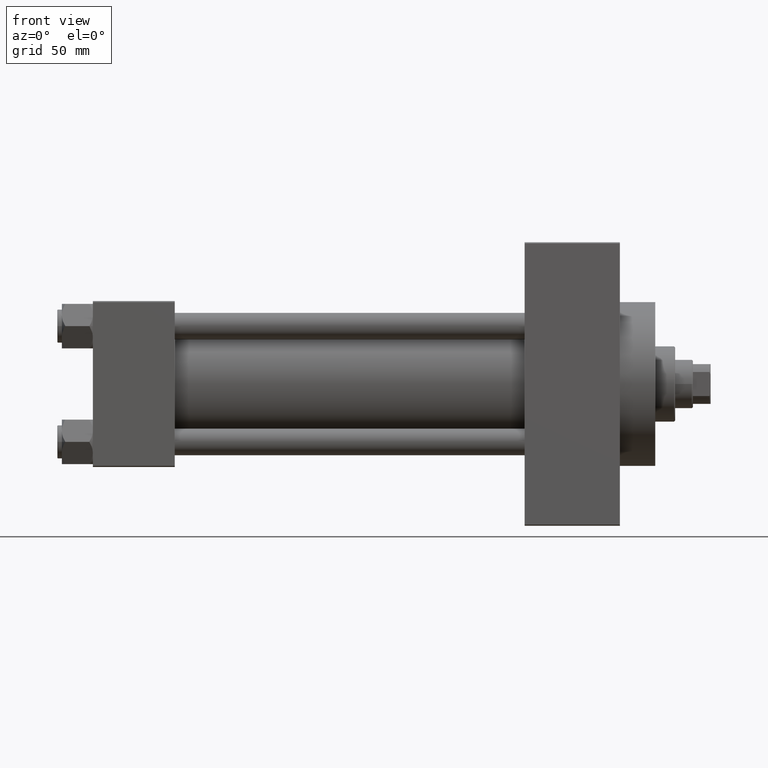
[diagram: clean part render]
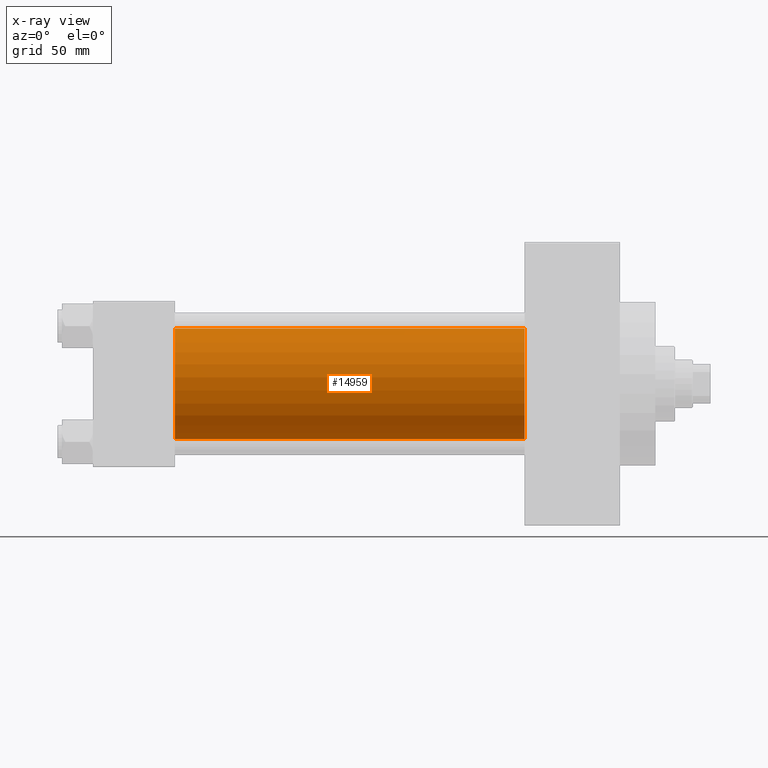
[diagram: x-ray — body ghosted, one internal face saturated and labeled with its STEP entity id]
A machine part, front view, then the same camera in x-ray: the body is ghosted and one INTERNAL B-rep face — a face not visible from any outside direction — is saturated and labeled: STEP entity #14959.
In plain terms, the highlighted cylindrical surface (partial cylindrical patch) has radius 25 mm, axis along (-1, -0, -0).
Its self-contained STEP definition (entity closure, byte-faithful):
#191 = DIRECTION ( 'NONE',  ( 1.000000000000000000, 0.000000000000000000, 0.000000000000000000 ) ) ;
#540 = EDGE_CURVE ( 'NONE', #11959, #33091, #17614, .T. ) ;
#1675 = AXIS2_PLACEMENT_3D ( 'NONE', #22541, #7981, #7503 ) ;
#4873 = EDGE_CURVE ( 'NONE', #44388, #33091, #30634, .T. ) ;
#5797 = EDGE_CURVE ( 'NONE', #46415, #11959, #6997, .T. ) ;
#6758 = CARTESIAN_POINT ( 'NONE',  ( 37.00000000000000000, 4.595317839031724996E-16, -25.00000000000000000 ) ) ;
#6997 = CIRCLE ( 'NONE', #42095, 25.00000000000000000 ) ;
#7503 = DIRECTION ( 'NONE',  ( 0.000000000000000000, 0.000000000000000000, -1.000000000000000000 ) ) ;
#7556 = CARTESIAN_POINT ( 'NONE',  ( 195.0000000000000000, -2.602085213965210642E-15, 0.000000000000000000 ) ) ;
#7981 = DIRECTION ( 'NONE',  ( 1.000000000000000000, 0.000000000000000000, 0.000000000000000000 ) ) ;
#9566 = DIRECTION ( 'NONE',  ( -1.000000000000000000, -0.000000000000000000, -0.000000000000000000 ) ) ;
#11959 = VERTEX_POINT ( 'NONE', #34697 ) ;
#12727 = EDGE_CURVE ( 'NONE', #46415, #44388, #25227, .T. ) ;
#14959 = ADVANCED_FACE ( 'NONE', ( #20072 ), #27468, .F. ) ;
#15443 = DIRECTION ( 'NONE',  ( 0.000000000000000000, 0.000000000000000000, -1.000000000000000000 ) ) ;
#17361 = CARTESIAN_POINT ( 'NONE',  ( 195.0000000000000000, -2.602085213965210642E-15, 25.00000000000000000 ) ) ;
#17614 = LINE ( 'NONE', #35542, #21313 ) ;
#18629 = CARTESIAN_POINT ( 'NONE',  ( 195.0000000000000000, -2.602085213965210642E-15, 25.00000000000000000 ) ) ;
#20072 = FACE_OUTER_BOUND ( 'NONE', #46613, .T. ) ;
#21313 = VECTOR ( 'NONE', #25480, 1000.000000000000000 ) ;
#22541 = CARTESIAN_POINT ( 'NONE',  ( 37.00000000000000000, -2.602085213965210642E-15, 0.000000000000000000 ) ) ;
#24284 = DIRECTION ( 'NONE',  ( -1.000000000000000000, -0.000000000000000000, -0.000000000000000000 ) ) ;
#24582 = CARTESIAN_POINT ( 'NONE',  ( 195.0000000000000000, -2.602085213965210642E-15, 0.000000000000000000 ) ) ;
#25227 = LINE ( 'NONE', #17361, #25407 ) ;
#25407 = VECTOR ( 'NONE', #24284, 1000.000000000000000 ) ;
#25480 = DIRECTION ( 'NONE',  ( -1.000000000000000000, -0.000000000000000000, -0.000000000000000000 ) ) ;
#27468 = CYLINDRICAL_SURFACE ( 'NONE', #43828, 25.00000000000000000 ) ;
#30634 = CIRCLE ( 'NONE', #1675, 25.00000000000000000 ) ;
#30867 = CARTESIAN_POINT ( 'NONE',  ( 37.00000000000000000, -2.602085213965210642E-15, 25.00000000000000000 ) ) ;
#33091 = VERTEX_POINT ( 'NONE', #6758 ) ;
#34697 = CARTESIAN_POINT ( 'NONE',  ( 195.0000000000000000, 4.595317839031724996E-16, -25.00000000000000000 ) ) ;
#35542 = CARTESIAN_POINT ( 'NONE',  ( 195.0000000000000000, 4.595317839031724996E-16, -25.00000000000000000 ) ) ;
#36986 = ORIENTED_EDGE ( 'NONE', *, *, #540, .T. ) ;
#38242 = ORIENTED_EDGE ( 'NONE', *, *, #5797, .T. ) ;
#41079 = ORIENTED_EDGE ( 'NONE', *, *, #4873, .F. ) ;
#42095 = AXIS2_PLACEMENT_3D ( 'NONE', #7556, #191, #15443 ) ;
#43470 = ORIENTED_EDGE ( 'NONE', *, *, #12727, .F. ) ;
#43828 = AXIS2_PLACEMENT_3D ( 'NONE', #24582, #9566, #45627 ) ;
#44388 = VERTEX_POINT ( 'NONE', #30867 ) ;
#45627 = DIRECTION ( 'NONE',  ( 0.000000000000000000, 0.000000000000000000, 1.000000000000000000 ) ) ;
#46415 = VERTEX_POINT ( 'NONE', #18629 ) ;
#46613 = EDGE_LOOP ( 'NONE', ( #38242, #36986, #41079, #43470 ) ) ;